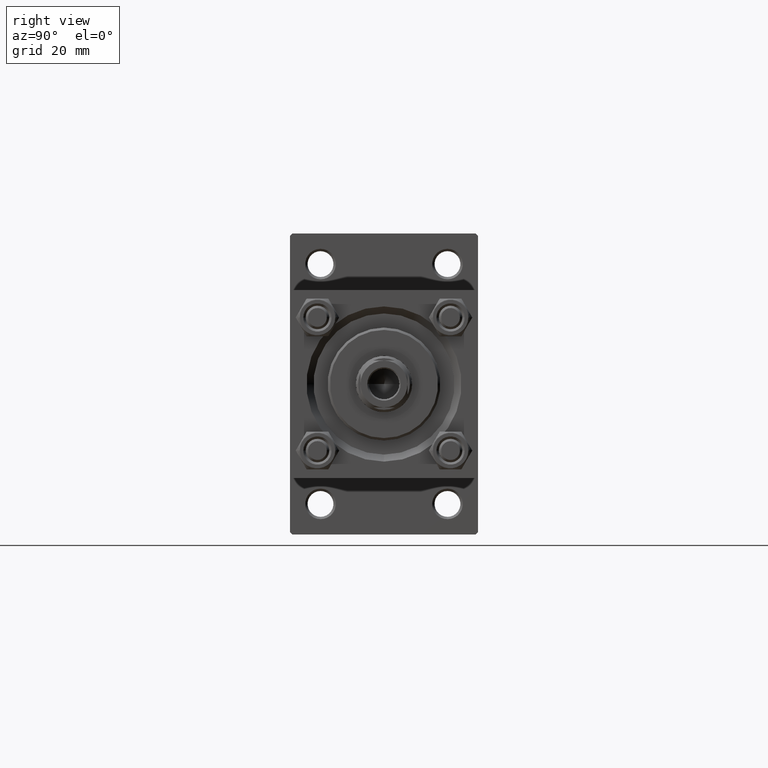
[diagram: clean part render]
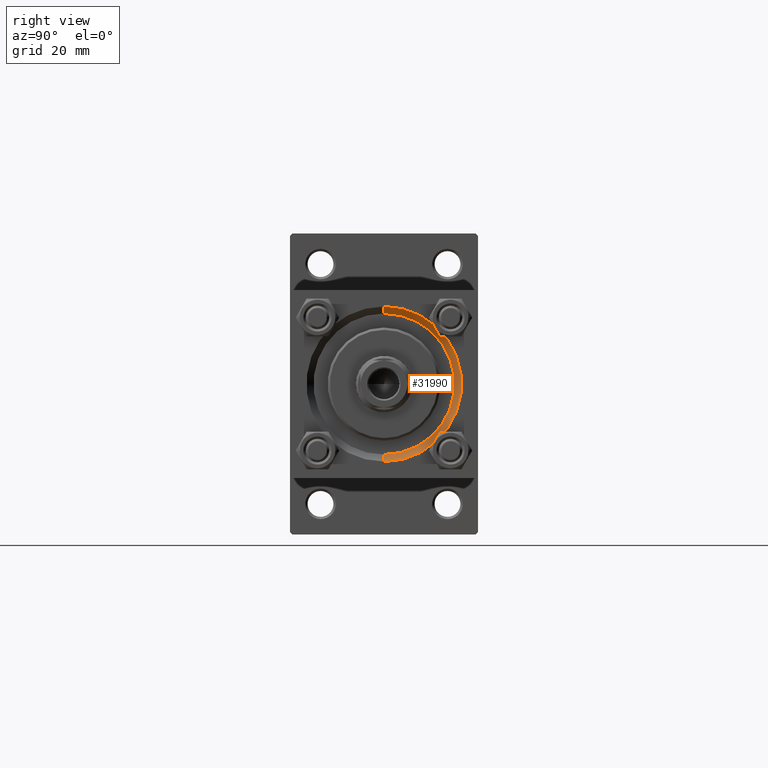
[diagram: same view with one face highlighted and labeled with its STEP entity id]
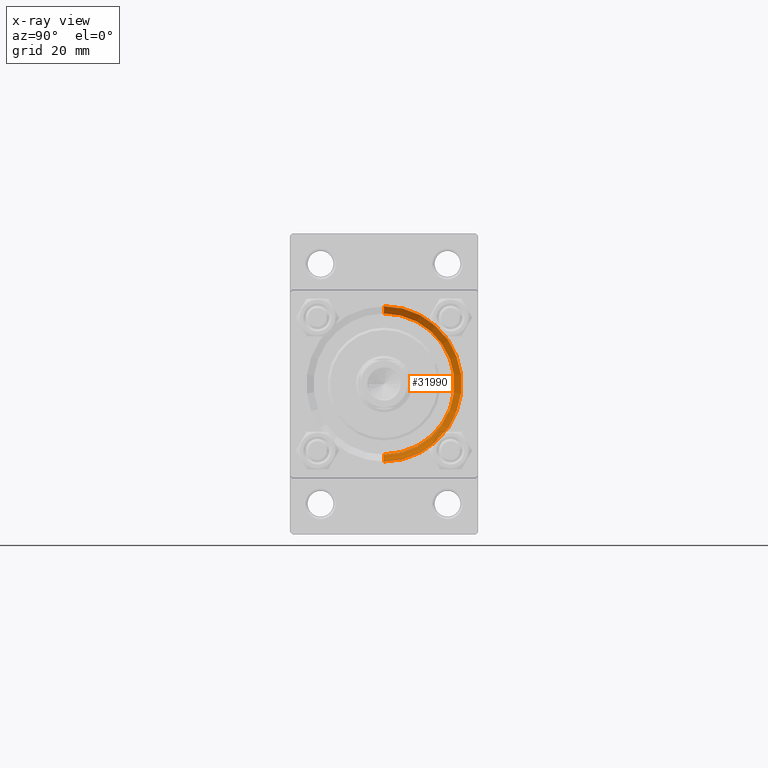
[diagram: x-ray of the same camera — body ghosted, the highlighted face saturated]
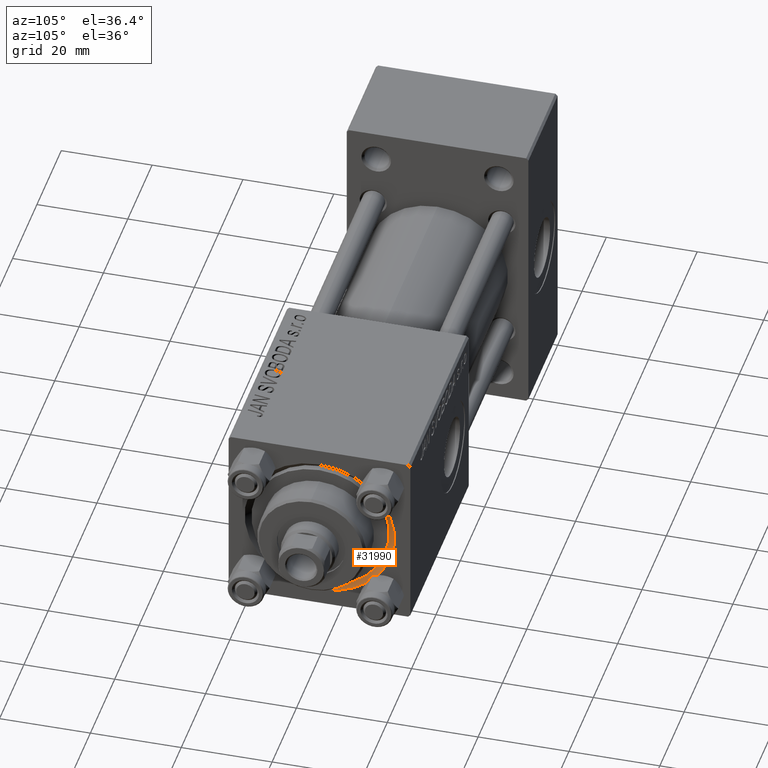
[diagram: same view with one face highlighted and labeled with its STEP entity id]
A machine part, right view. The second image highlights one B-rep face of the part: STEP entity #31990.
The next image is the same camera in x-ray: the body ghosted, the highlighted face saturated — about 0% of this face is hidden behind the body in this view.
A second angle (auxiliary view) of the same face is appended — the face is thin or edge-on in the first view.
In plain terms, the highlighted conical surface has half-angle 45 deg.
Its self-contained STEP definition (entity closure, byte-faithful):
#1004 = LINE ( 'NONE', #43402, #12769 ) ;
#2100 = VERTEX_POINT ( 'NONE', #24858 ) ;
#2393 = CARTESIAN_POINT ( 'NONE',  ( 119.5000000000000000, 0.000000000000000000, -15.00000000000000000 ) ) ;
#2488 = CONICAL_SURFACE ( 'NONE', #12980, 15.00000000000000000, 0.7853981633974482790 ) ;
#3915 = DIRECTION ( 'NONE',  ( 1.000000000000000000, 0.000000000000000000, 0.000000000000000000 ) ) ;
#7074 = ORIENTED_EDGE ( 'NONE', *, *, #41484, .F. ) ;
#7115 = CARTESIAN_POINT ( 'NONE',  ( 119.5000000000000000, 0.000000000000000000, 0.000000000000000000 ) ) ;
#9411 = VECTOR ( 'NONE', #18039, 1000.000000000000114 ) ;
#12013 = FACE_OUTER_BOUND ( 'NONE', #26622, .T. ) ;
#12368 = AXIS2_PLACEMENT_3D ( 'NONE', #34548, #19162, #35284 ) ;
#12769 = VECTOR ( 'NONE', #25479, 1000.000000000000114 ) ;
#12980 = AXIS2_PLACEMENT_3D ( 'NONE', #23126, #3915, #27390 ) ;
#14016 = CARTESIAN_POINT ( 'NONE',  ( 119.5000000000000000, 0.000000000000000000, -15.00000000000000000 ) ) ;
#15740 = VERTEX_POINT ( 'NONE', #2393 ) ;
#16236 = ORIENTED_EDGE ( 'NONE', *, *, #25161, .F. ) ;
#18039 = DIRECTION ( 'NONE',  ( 0.7071067811865474617, 0.000000000000000000, -0.7071067811865474617 ) ) ;
#18373 = EDGE_CURVE ( 'NONE', #15740, #31105, #22069, .T. ) ;
#19162 = DIRECTION ( 'NONE',  ( -1.000000000000000000, -0.000000000000000000, -0.000000000000000000 ) ) ;
#19360 = VERTEX_POINT ( 'NONE', #44092 ) ;
#21367 = ORIENTED_EDGE ( 'NONE', *, *, #18373, .T. ) ;
#22069 = LINE ( 'NONE', #14016, #9411 ) ;
#22263 = DIRECTION ( 'NONE',  ( 0.000000000000000000, 0.000000000000000000, 1.000000000000000000 ) ) ;
#22358 = EDGE_CURVE ( 'NONE', #15740, #19360, #39351, .T. ) ;
#22436 = AXIS2_PLACEMENT_3D ( 'NONE', #7115, #41426, #22263 ) ;
#23126 = CARTESIAN_POINT ( 'NONE',  ( 119.5000000000000000, 0.000000000000000000, 0.000000000000000000 ) ) ;
#24858 = CARTESIAN_POINT ( 'NONE',  ( 121.0000000000000142, 2.020667218593134678E-15, 16.50000000000001421 ) ) ;
#25161 = EDGE_CURVE ( 'NONE', #19360, #2100, #1004, .T. ) ;
#25479 = DIRECTION ( 'NONE',  ( 0.7071067811865474617, 8.659560562354932858E-17, 0.7071067811865474617 ) ) ;
#26622 = EDGE_LOOP ( 'NONE', ( #16236, #35285, #21367, #7074 ) ) ;
#27390 = DIRECTION ( 'NONE',  ( 0.000000000000000000, 0.000000000000000000, -1.000000000000000000 ) ) ;
#31105 = VERTEX_POINT ( 'NONE', #34880 ) ;
#31990 = ADVANCED_FACE ( 'NONE', ( #12013 ), #2488, .F. ) ;
#32477 = CIRCLE ( 'NONE', #12368, 16.50000000000001421 ) ;
#34548 = CARTESIAN_POINT ( 'NONE',  ( 121.0000000000000142, 0.000000000000000000, 0.000000000000000000 ) ) ;
#34880 = CARTESIAN_POINT ( 'NONE',  ( 121.0000000000000142, 0.000000000000000000, -16.50000000000001421 ) ) ;
#35284 = DIRECTION ( 'NONE',  ( 0.000000000000000000, 0.000000000000000000, 1.000000000000000000 ) ) ;
#35285 = ORIENTED_EDGE ( 'NONE', *, *, #22358, .F. ) ;
#39351 = CIRCLE ( 'NONE', #22436, 15.00000000000000000 ) ;
#41426 = DIRECTION ( 'NONE',  ( 1.000000000000000000, 0.000000000000000000, 0.000000000000000000 ) ) ;
#41484 = EDGE_CURVE ( 'NONE', #2100, #31105, #32477, .T. ) ;
#43402 = CARTESIAN_POINT ( 'NONE',  ( 119.5000000000000000, 1.836970198721029589E-15, 15.00000000000000000 ) ) ;
#44092 = CARTESIAN_POINT ( 'NONE',  ( 119.5000000000000000, 1.836970198721029589E-15, 15.00000000000000000 ) ) ;